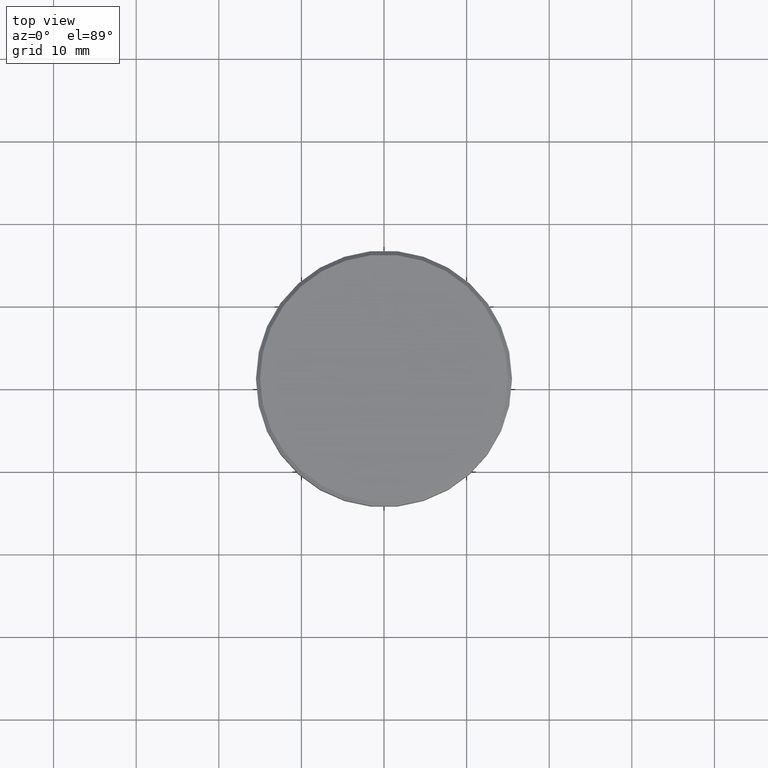
[diagram: clean part render]
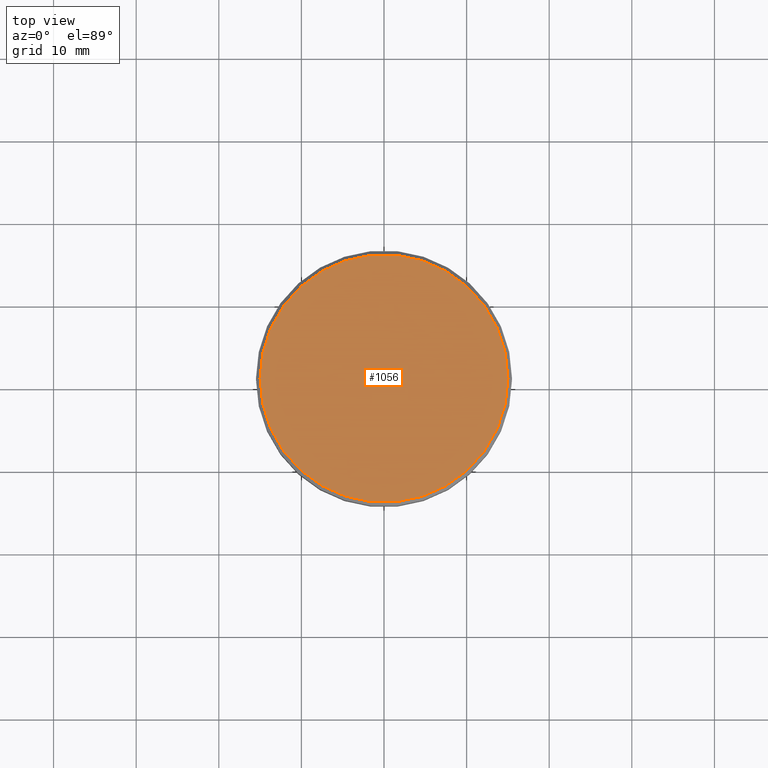
[diagram: same view with one face highlighted and labeled with its STEP entity id]
A machine part, top view. The second image highlights one B-rep face of the part: STEP entity #1056.
In plain terms, the highlighted planar face has unit normal (0, -0, 1).
Its self-contained STEP definition (entity closure, byte-faithful):
#62 = CIRCLE ( 'NONE', #201, 15.00000000000000000 ) ;
#64 = ORIENTED_EDGE ( 'NONE', *, *, #513, .T. ) ;
#79 = VERTEX_POINT ( 'NONE', #179 ) ;
#123 = DIRECTION ( 'NONE',  ( 1.000000000000000000, 0.000000000000000000, 0.000000000000000000 ) ) ;
#179 = CARTESIAN_POINT ( 'NONE',  ( -15.00000000000000000, 0.000000000000000000, 0.000000000000000000 ) ) ;
#201 = AXIS2_PLACEMENT_3D ( 'NONE', #1122, #1128, #931 ) ;
#202 = CARTESIAN_POINT ( 'NONE',  ( 0.000000000000000000, 0.000000000000000000, 0.000000000000000000 ) ) ;
#229 = VERTEX_POINT ( 'NONE', #1101 ) ;
#297 = DIRECTION ( 'NONE',  ( 0.000000000000000000, -0.000000000000000000, 1.000000000000000000 ) ) ;
#367 = ORIENTED_EDGE ( 'NONE', *, *, #526, .T. ) ;
#389 = AXIS2_PLACEMENT_3D ( 'NONE', #763, #565, #1132 ) ;
#391 = FACE_OUTER_BOUND ( 'NONE', #555, .T. ) ;
#513 = EDGE_CURVE ( 'NONE', #79, #229, #62, .T. ) ;
#526 = EDGE_CURVE ( 'NONE', #229, #79, #895, .T. ) ;
#555 = EDGE_LOOP ( 'NONE', ( #64, #367 ) ) ;
#565 = DIRECTION ( 'NONE',  ( -0.000000000000000000, -0.000000000000000000, 1.000000000000000000 ) ) ;
#763 = CARTESIAN_POINT ( 'NONE',  ( 0.000000000000000000, 0.000000000000000000, 0.000000000000000000 ) ) ;
#895 = CIRCLE ( 'NONE', #389, 15.00000000000000000 ) ;
#931 = DIRECTION ( 'NONE',  ( 1.000000000000000000, 0.000000000000000000, 0.000000000000000000 ) ) ;
#1031 = PLANE ( 'NONE',  #1064 ) ;
#1056 = ADVANCED_FACE ( 'NONE', ( #391 ), #1031, .T. ) ;
#1064 = AXIS2_PLACEMENT_3D ( 'NONE', #202, #297, #123 ) ;
#1101 = CARTESIAN_POINT ( 'NONE',  ( 15.00000000000000000, 1.867586368699713376E-15, 0.000000000000000000 ) ) ;
#1122 = CARTESIAN_POINT ( 'NONE',  ( 0.000000000000000000, 0.000000000000000000, 0.000000000000000000 ) ) ;
#1128 = DIRECTION ( 'NONE',  ( -0.000000000000000000, -0.000000000000000000, 1.000000000000000000 ) ) ;
#1132 = DIRECTION ( 'NONE',  ( 1.000000000000000000, 0.000000000000000000, 0.000000000000000000 ) ) ;